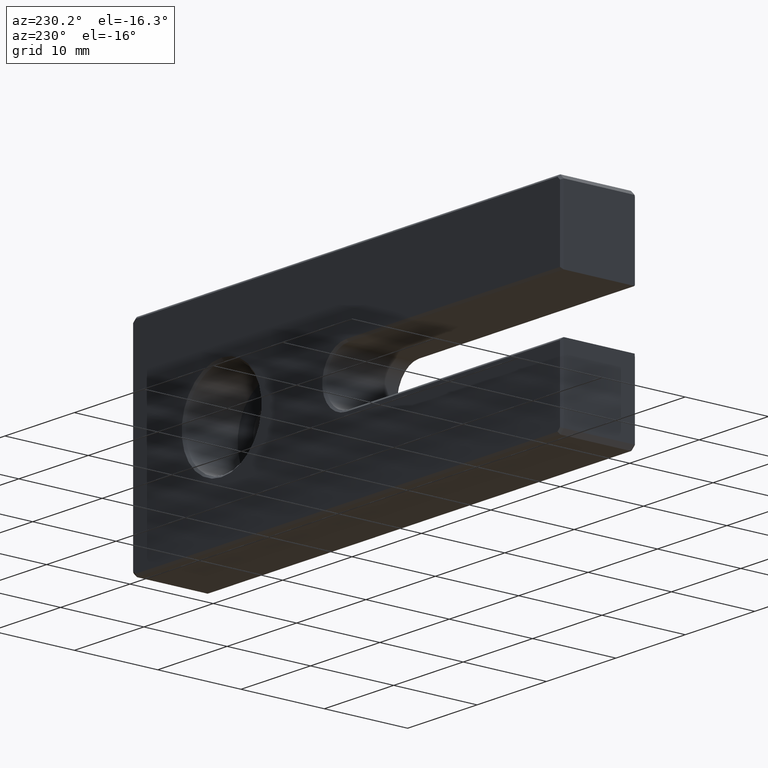
[diagram: clean part render]
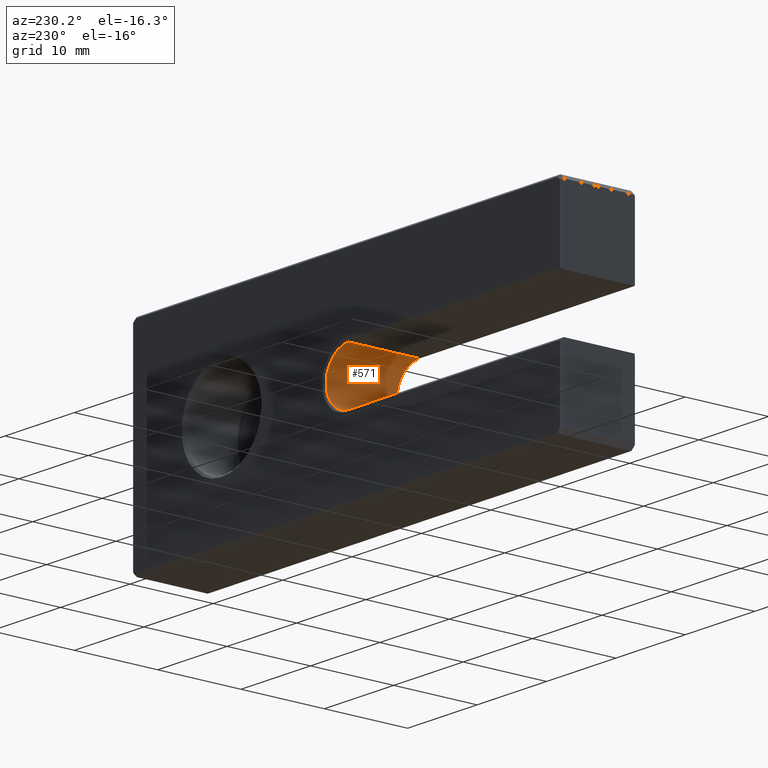
[diagram: same view with one face highlighted and labeled with its STEP entity id]
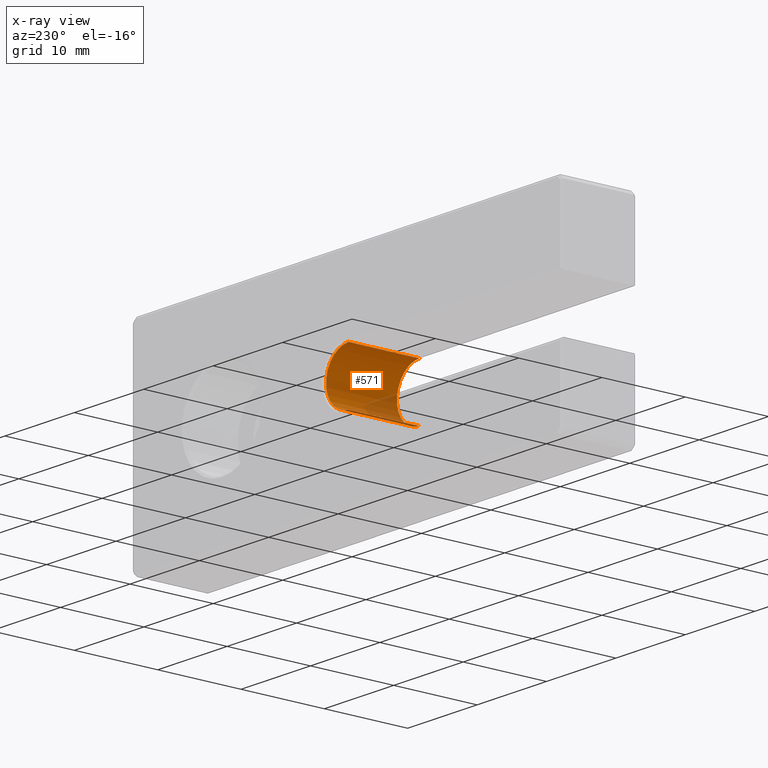
[diagram: x-ray of the same camera — body ghosted, the highlighted face saturated]
A machine part, auxiliary view. The second image highlights one B-rep face of the part: STEP entity #571.
The next image is the same camera in x-ray: the body ghosted, the highlighted face saturated — about 14% of this face is hidden behind the body in this view.
In plain terms, the highlighted cylindrical surface (edge-blend (fillet) strip) has radius 3.25 mm, axis along (-0, 1, -0).
Its self-contained STEP definition (entity closure, byte-faithful):
#41 = DIRECTION ( 'NONE',  ( 0.000000000000000000, 1.000000000000000000, 0.000000000000000000 ) ) ;
#42 = CIRCLE ( 'NONE', #893, 3.250000000000000000 ) ;
#65 = FACE_OUTER_BOUND ( 'NONE', #878, .T. ) ;
#66 = CARTESIAN_POINT ( 'NONE',  ( 0.000000000000000000, 0.2499999999999932832, 3.250000000000000000 ) ) ;
#77 = CIRCLE ( 'NONE', #1139, 3.250000000000000000 ) ;
#87 = EDGE_CURVE ( 'NONE', #270, #1156, #614, .T. ) ;
#130 = VERTEX_POINT ( 'NONE', #66 ) ;
#133 = CYLINDRICAL_SURFACE ( 'NONE', #934, 3.250000000000000000 ) ;
#137 = DIRECTION ( 'NONE',  ( 0.000000000000000000, 0.000000000000000000, 1.000000000000000000 ) ) ;
#181 = VECTOR ( 'NONE', #356, 1000.000000000000000 ) ;
#248 = CARTESIAN_POINT ( 'NONE',  ( 0.000000000000000000, -12.00000000000000533, 0.000000000000000000 ) ) ;
#263 = CARTESIAN_POINT ( 'NONE',  ( 0.000000000000000000, -12.00000000000000533, 3.250000000000000000 ) ) ;
#270 = VERTEX_POINT ( 'NONE', #635 ) ;
#288 = VECTOR ( 'NONE', #862, 1000.000000000000000 ) ;
#327 = EDGE_CURVE ( 'NONE', #686, #1156, #77, .T. ) ;
#329 = CARTESIAN_POINT ( 'NONE',  ( 0.000000000000000000, -12.00000000000000533, -3.250000000000000000 ) ) ;
#356 = DIRECTION ( 'NONE',  ( -0.000000000000000000, 1.000000000000000000, -0.000000000000000000 ) ) ;
#369 = LINE ( 'NONE', #263, #181 ) ;
#415 = DIRECTION ( 'NONE',  ( 0.000000000000000000, 0.000000000000000000, 1.000000000000000000 ) ) ;
#420 = DIRECTION ( 'NONE',  ( -0.000000000000000000, 1.000000000000000000, -0.000000000000000000 ) ) ;
#426 = CARTESIAN_POINT ( 'NONE',  ( 0.000000000000000000, 0.2499999999999932832, 0.000000000000000000 ) ) ;
#442 = ORIENTED_EDGE ( 'NONE', *, *, #707, .T. ) ;
#471 = CARTESIAN_POINT ( 'NONE',  ( 0.000000000000000000, 8.749999999999998224, 0.000000000000000000 ) ) ;
#534 = EDGE_CURVE ( 'NONE', #270, #130, #42, .T. ) ;
#571 = ADVANCED_FACE ( 'NONE', ( #65 ), #133, .F. ) ;
#614 = LINE ( 'NONE', #329, #288 ) ;
#635 = CARTESIAN_POINT ( 'NONE',  ( 0.000000000000000000, 0.2499999999999932832, -3.250000000000000000 ) ) ;
#686 = VERTEX_POINT ( 'NONE', #1083 ) ;
#695 = DIRECTION ( 'NONE',  ( -0.000000000000000000, -1.000000000000000000, -0.000000000000000000 ) ) ;
#698 = CARTESIAN_POINT ( 'NONE',  ( 0.000000000000000000, 8.749999999999998224, -3.250000000000000000 ) ) ;
#707 = EDGE_CURVE ( 'NONE', #130, #686, #369, .T. ) ;
#782 = ORIENTED_EDGE ( 'NONE', *, *, #327, .T. ) ;
#862 = DIRECTION ( 'NONE',  ( -0.000000000000000000, 1.000000000000000000, -0.000000000000000000 ) ) ;
#878 = EDGE_LOOP ( 'NONE', ( #1140, #1065, #442, #782 ) ) ;
#893 = AXIS2_PLACEMENT_3D ( 'NONE', #426, #695, #415 ) ;
#934 = AXIS2_PLACEMENT_3D ( 'NONE', #248, #420, #137 ) ;
#1065 = ORIENTED_EDGE ( 'NONE', *, *, #534, .T. ) ;
#1083 = CARTESIAN_POINT ( 'NONE',  ( 0.000000000000000000, 8.749999999999998224, 3.250000000000000000 ) ) ;
#1108 = DIRECTION ( 'NONE',  ( 0.000000000000000000, 0.000000000000000000, 1.000000000000000000 ) ) ;
#1139 = AXIS2_PLACEMENT_3D ( 'NONE', #471, #41, #1108 ) ;
#1140 = ORIENTED_EDGE ( 'NONE', *, *, #87, .F. ) ;
#1156 = VERTEX_POINT ( 'NONE', #698 ) ;